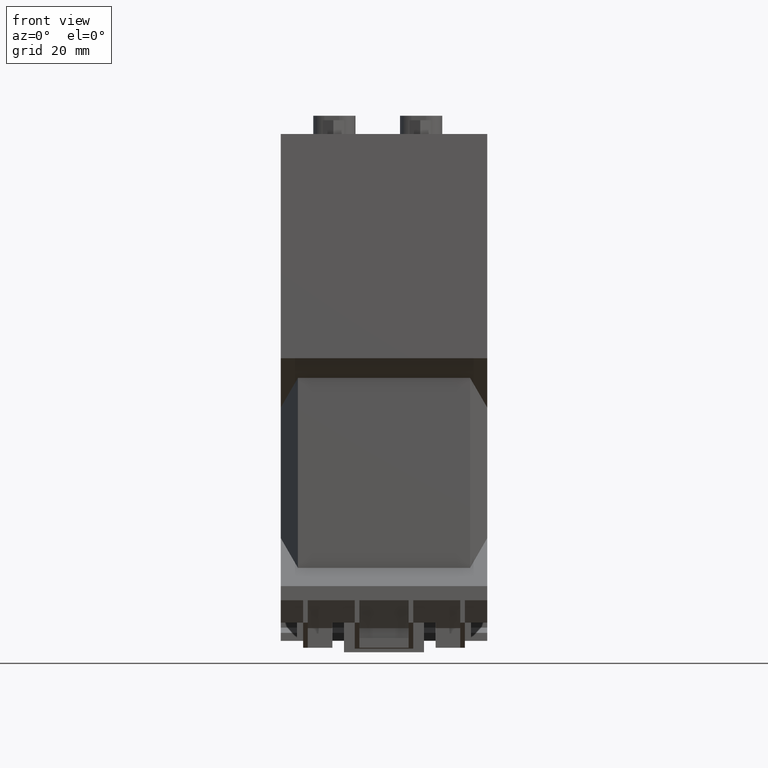
[diagram: clean part render]
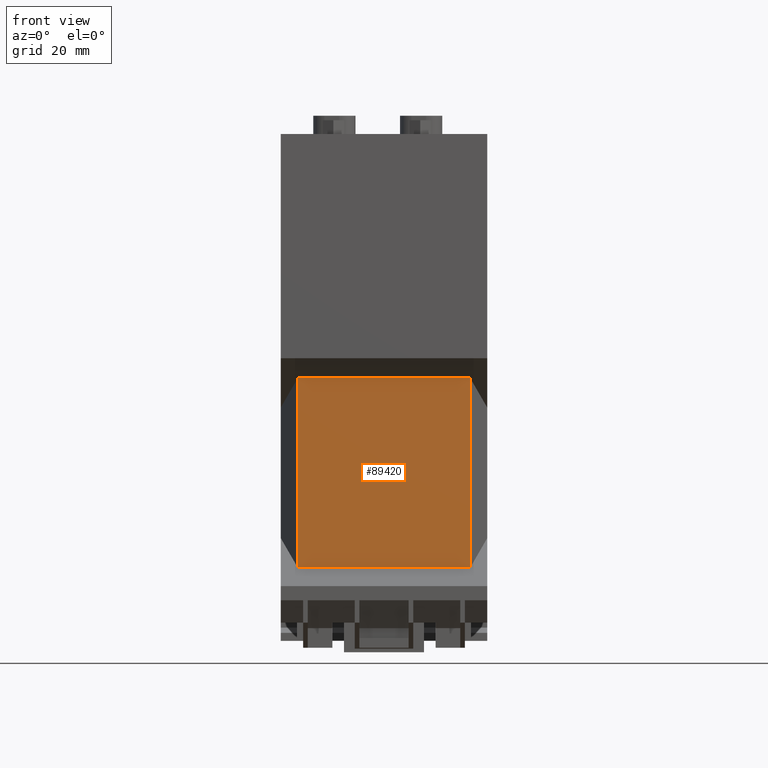
[diagram: same view with one face highlighted and labeled with its STEP entity id]
A machine part, front view. The second image highlights one B-rep face of the part: STEP entity #89420.
In plain terms, the highlighted planar face has unit normal (-0, -1, 0).
Its self-contained STEP definition (entity closure, byte-faithful):
#84320=CARTESIAN_POINT('',(-60.0499999999987,53.599999999998,
-7.54722325026919));
#84330=VERTEX_POINT('',#84320);
#84430=CARTESIAN_POINT('',(-60.0500000000158,53.600000000015,
30.1472232502651));
#84440=VERTEX_POINT('',#84430);
#84470=CARTESIAN_POINT('',(-60.049999999997,53.5999999999963,-11.3));
#84480=DIRECTION('',(4.52799999999997E-13,-4.52799999999993E-13,-1.));
#84490=VECTOR('',#84480,1.);
#84500=LINE('',#84470,#84490);
#84510=EDGE_CURVE('',#84440,#84330,#84500,.T.);
#84720=CARTESIAN_POINT('',(-60.0500000000161,11.9999999999855,
30.1472232502649));
#84730=VERTEX_POINT('',#84720);
#84760=CARTESIAN_POINT('',(-60.0500000000057,24.,30.147223250265));
#84770=DIRECTION('',(6.59999999999827E-15,1.,3.81051177665051E-15));
#84780=VECTOR('',#84770,1.);
#84790=LINE('',#84760,#84780);
#84800=EDGE_CURVE('',#84730,#84440,#84790,.T.);
#85000=CARTESIAN_POINT('',(-60.0499999999989,24.,-7.54722325026908));
#85010=DIRECTION('',(-6.60000000000173E-15,-1.,3.8105117766525E-15));
#85020=VECTOR('',#85010,1.);
#85030=LINE('',#85000,#85020);
#85040=CARTESIAN_POINT('',(-60.049999999999,12.0000000000025,
-7.54722325026901));
#85050=VERTEX_POINT('',#85040);
#85060=EDGE_CURVE('',#84330,#85050,#85030,.T.);
#85320=CARTESIAN_POINT('',(-60.0499999999973,12.0000000000043,-11.3));
#85330=DIRECTION('',(4.52800000000003E-13,4.52799999999919E-13,-1.));
#85340=VECTOR('',#85330,1.);
#85350=LINE('',#85320,#85340);
#85360=EDGE_CURVE('',#84730,#85050,#85350,.T.);
#89310=CARTESIAN_POINT('',(-60.050000000002,68.5000000000004,
-1.90176763226191E-11));
#89320=DIRECTION('',(-1.,6.6E-15,-4.528E-13));
#89330=DIRECTION('',(-4.528E-13,0.,1.));
#89340=AXIS2_PLACEMENT_3D('',#89310,#89320,#89330);
#89350=PLANE('',#89340);
#89360=ORIENTED_EDGE('',*,*,#85060,.T.);
#89370=ORIENTED_EDGE('',*,*,#84510,.T.);
#89380=ORIENTED_EDGE('',*,*,#84800,.T.);
#89390=ORIENTED_EDGE('',*,*,#85360,.F.);
#89400=EDGE_LOOP('',(#89390,#89380,#89370,#89360));
#89410=FACE_OUTER_BOUND('',#89400,.T.);
#89420=ADVANCED_FACE('',(#89410),#89350,.T.);